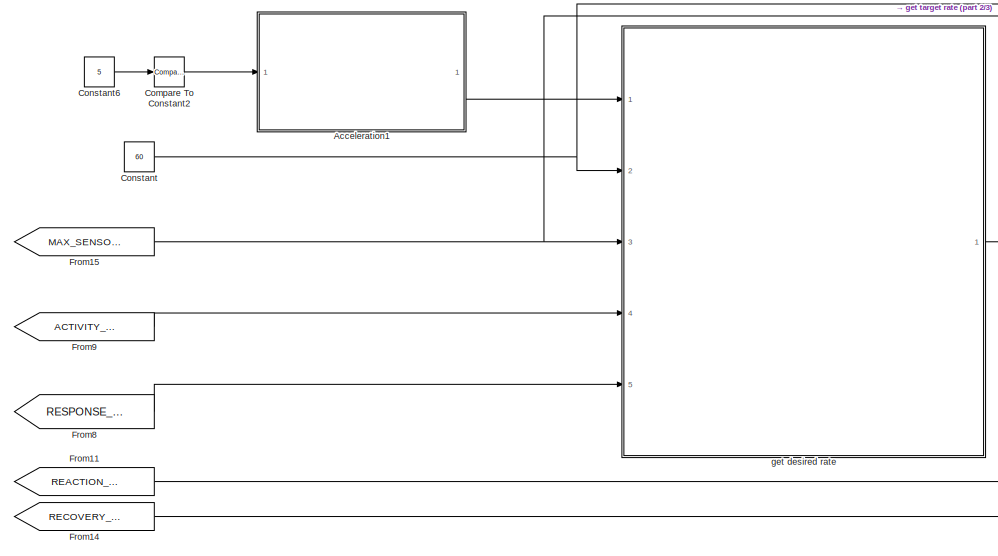
[diagram: root canvas - part 1/3, central region]
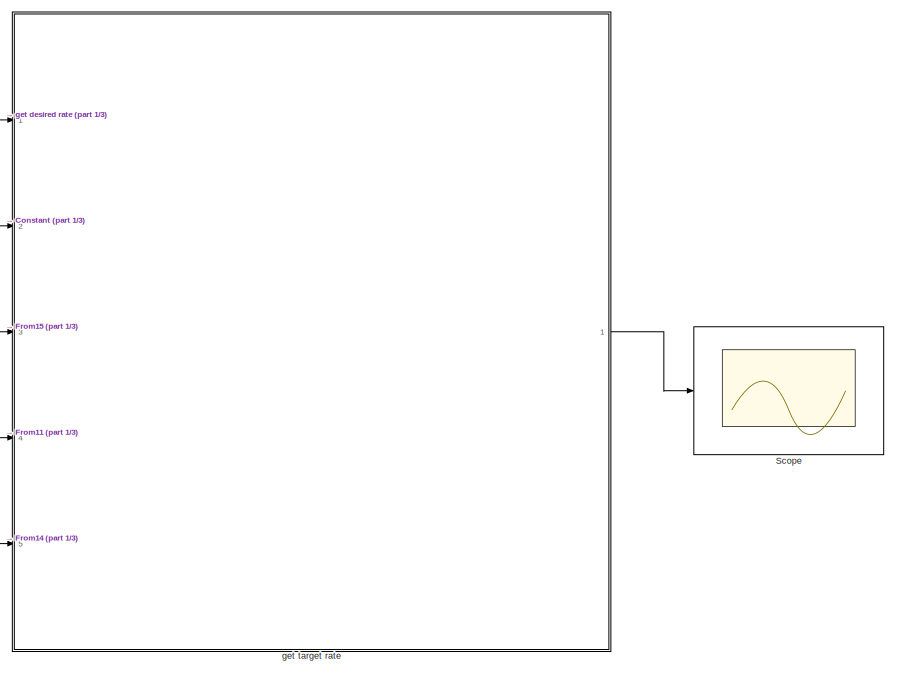
[diagram: root canvas - part 2/3, right side, full height]
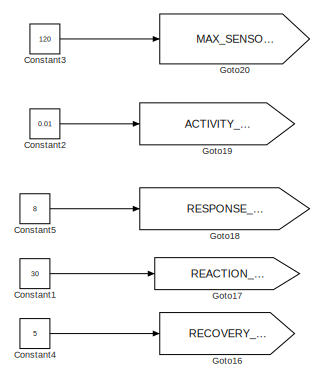
[diagram: root canvas - part 3/3, bottom left region]
MODEL slx_f4938a206f58
KIND model
CONFIG AbsTol = auto
CONFIG EnableMultiTasking = on
CONFIG FixedStep = 1e-3
CONFIG MaxStep = auto
CONFIG MinStep = auto
CONFIG RelTol = 1e-3
CONFIG SampleTimeConstraint = Unconstrained
CONFIG SolverName = FixedStepAuto
CONFIG StartTime = 0.0
CONFIG StopTime = 10.0
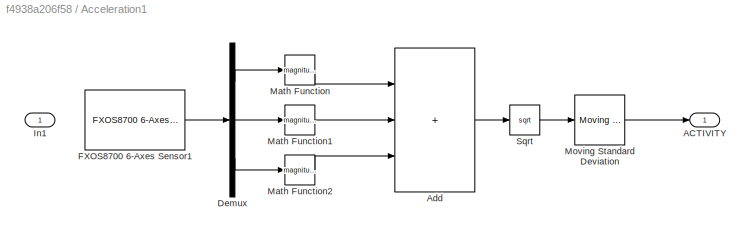
BLOCK [SubSystem] Acceleration1
  NameLocation = top
  Ports = [1, 1]
  RequestExecContextInheritance = off
BLOCK [Outport] Acceleration1/ACTIVITY
  SourceOfInitialOutputValue = Input signal
BLOCK [Sum] Acceleration1/Add
  IconShape = rectangular
  Inputs = +++
  Ports = [3, 1]
BLOCK [Demux] Acceleration1/Demux
  Outputs = 3
  Ports = [1, 3]
BLOCK [Reference] Acceleration1/FXOS8700 6-Axes Sensor1  REF=frdmk64flib/FXOS8700 6-Axes Sensor
  Ports = [0, 1]
  SourceBlock = frdmk64flib/FXOS8700 6-Axes Sensor
  SourceProductBaseCode = EC_FRDM_K64F
  SourceType = freedomk64f.fxos8700
BLOCK [Inport] Acceleration1/In1
BLOCK [Math] Acceleration1/Math Function
  Operator = magnitude^2
  OutDataTypeStr = double
  Ports = [1, 1]
  SignedPower = on
BLOCK [Math] Acceleration1/Math Function1
  Operator = magnitude^2
  OutDataTypeStr = double
  Ports = [1, 1]
  SignedPower = on
BLOCK [Math] Acceleration1/Math Function2
  Operator = magnitude^2
  OutDataTypeStr = double
  Ports = [1, 1]
  SignedPower = on
BLOCK [Reference] Acceleration1/Moving Standard Deviation  REF=dspstat3/Moving
Standard
Deviation
  Ports = [1, 1]
  SourceBlock = dspstat3/Moving\nStandard\nDeviation
  SourceProductBaseCode = DS
  SourceType = dsp.simulink.MovingStandardDeviation
BLOCK [Sqrt] Acceleration1/Sqrt
BLOCK [Reference] Compare To Constant2  REF=simulink/Logic and Bit
Operations/Compare
To Constant
  Ports = [1, 1]
  SourceBlock = simulink/Logic and Bit\nOperations/Compare\nTo Constant
  SourceProductBaseCode = SL
  SourceType = Compare To Constant
BLOCK [Constant] Constant
  Value = 60
BLOCK [Constant] Constant1
  Value = 30
BLOCK [Constant] Constant2
  Value = 0.01
BLOCK [Constant] Constant3
  Value = 120
BLOCK [Constant] Constant4
  Value = 5
BLOCK [Constant] Constant5
  Value = 8
BLOCK [Constant] Constant6
  Value = 5
BLOCK [From] From11
  GotoTag = REACTION_TIME
  TagVisibility = global
BLOCK [From] From14
  GotoTag = RECOVERY_TIME
  TagVisibility = global
BLOCK [From] From15
  GotoTag = MAX_SENSOR_RATE
  TagVisibility = global
BLOCK [From] From8
  GotoTag = RESPONSE_FACTOR
  TagVisibility = global
BLOCK [From] From9
  GotoTag = ACTIVITY_THRESHOLD
  TagVisibility = global
BLOCK [Goto] Goto16
  GotoTag = RECOVERY_TIME
  IconDisplay = Signal name
  TagVisibility = global
BLOCK [Goto] Goto17
  GotoTag = REACTION_TIME
  IconDisplay = Signal name
  TagVisibility = global
BLOCK [Goto] Goto18
  GotoTag = RESPONSE_FACTOR
  IconDisplay = Signal name
  TagVisibility = global
BLOCK [Goto] Goto19
  GotoTag = ACTIVITY_THRESHOLD
  IconDisplay = Signal name
  TagVisibility = global
BLOCK [Goto] Goto20
  GotoTag = MAX_SENSOR_RATE
  IconDisplay = Signal name
  TagVisibility = global
BLOCK [Scope] Scope
  Floating = off
  NumInputPorts = 1
  Ports = [1]
  ScopeSpecificationString = Simulink.scopes.TimeScopeBlockCfg('CurrentConfiguration', extmgr.ConfigurationSet(extmgr.Configuration('Core','General UI',true),extmgr.Configuration('Core','Source UI',true),extmgr.Configuration('Sources','WiredSimulink',true),extmgr.Configuration('Visuals','Time Domain',true,'SerializedDisplays',{struct('MinYLimReal','48.5','MaxYLimReal','63.5','YLabelReal','','MinYLimMag','48.5','MaxYLimMag','6...<+1388ch>
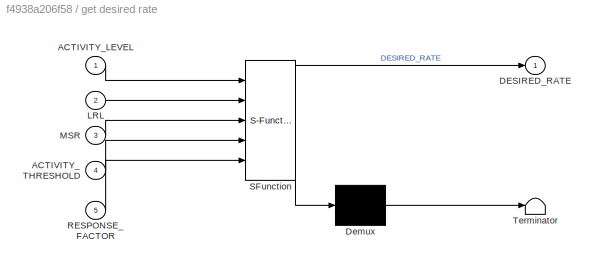
BLOCK [SubSystem] get desired rate
  ErrorFcn = Stateflow.Translate.translate
  PermitHierarchicalResolution = ExplicitOnly
  Ports = [5, 1]
  RequestExecContextInheritance = off
  SFBlockType = Chart
  TreatAsAtomicUnit = on
BLOCK [Demux] get desired rate/ Demux 
  Outputs = 1
  Ports = [1, 1]
BLOCK [S-Function] get desired rate/ SFunction 
  EnableBusSupport = on
  FunctionName = sf_sfun
  PortCounts = [5 2]
  Ports = [5, 2]
  SFcnIsStateOwnerBlock = off
  SFunctionDeploymentMode = off
  Tag = Stateflow S-Function 4
BLOCK [Terminator] get desired rate/ Terminator 
BLOCK [Inport] get desired rate/ACTIVITY_LEVEL
BLOCK [Inport] get desired rate/ACTIVITY_THRESHOLD
  Port = 4
BLOCK [Outport] get desired rate/DESIRED_RATE
BLOCK [Inport] get desired rate/LRL
  Port = 2
BLOCK [Inport] get desired rate/MSR
  Port = 3
BLOCK [Inport] get desired rate/RESPONSE_FACTOR
  Port = 5
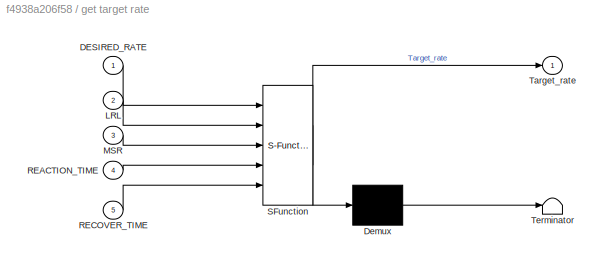
BLOCK [SubSystem] get target rate
  ErrorFcn = Stateflow.Translate.translate
  PermitHierarchicalResolution = ExplicitOnly
  PortSchema = {"entries":[{"content":{"sides":[{"content":{"connectorIds":["In3","In2","In1","In4","In5"]},"type":"ConnectorPlacement.EquallySpacedRectSide","uuid":"b1115713-3752-47d5-be72-104b51cdb1c5"},{"content":{"connectorIds":["Out1"],"side":"RIGHT"},"type":"ConnectorPlacement.EquallySpacedRectSide","uuid":"0930a30a-8aa5-4912-ba1f-cc7f148656b0"},{"content":{"connectorIds":[],"side":"TOP"},"type":"Connector...<+264ch>
  Ports = [5, 1]
  RequestExecContextInheritance = off
  SFBlockType = Chart
  TreatAsAtomicUnit = on
BLOCK [Demux] get target rate/ Demux 
  Outputs = 1
  Ports = [1, 1]
BLOCK [S-Function] get target rate/ SFunction 
  EnableBusSupport = on
  FunctionName = sf_sfun
  PortCounts = [5 2]
  Ports = [5, 2]
  SFcnIsStateOwnerBlock = off
  SFunctionDeploymentMode = off
  Tag = Stateflow S-Function 5
BLOCK [Terminator] get target rate/ Terminator 
BLOCK [Inport] get target rate/DESIRED_RATE
BLOCK [Inport] get target rate/LRL
  Port = 2
BLOCK [Inport] get target rate/MSR
  Port = 3
BLOCK [Inport] get target rate/REACTION_TIME
  Port = 4
BLOCK [Inport] get target rate/RECOVER_TIME
  Port = 5
BLOCK [Outport] get target rate/Target_rate
LINE Acceleration1/Add:1 -> Acceleration1/Sqrt:1
LINE Acceleration1/Demux:1 -> Acceleration1/Math Function:1
LINE Acceleration1/Demux:2 -> Acceleration1/Math Function1:1
LINE Acceleration1/Demux:3 -> Acceleration1/Math Function2:1
LINE Acceleration1/FXOS8700 6-Axes Sensor1:1 -> Acceleration1/Demux:1
LINE Acceleration1/Math Function1:1 -> Acceleration1/Add:2
LINE Acceleration1/Math Function2:1 -> Acceleration1/Add:3
LINE Acceleration1/Math Function:1 -> Acceleration1/Add:1
LINE Acceleration1/Moving Standard Deviation:1 -> Acceleration1/ACTIVITY:1
LINE Acceleration1/Sqrt:1 -> Acceleration1/Moving Standard Deviation:1
LINE Acceleration1:1 -> get desired rate:1
LINE Compare To Constant2:1 -> Acceleration1:1
LINE Constant1:1 -> Goto17:1
LINE Constant2:1 -> Goto19:1
LINE Constant3:1 -> Goto20:1
LINE Constant4:1 -> Goto16:1
LINE Constant5:1 -> Goto18:1
LINE Constant6:1 -> Compare To Constant2:1
NET Constant:1 -> get desired rate:2, get target rate:2
LINE From11:1 -> get target rate:4
LINE From14:1 -> get target rate:5
NET From15:1 -> get desired rate:3, get target rate:3
LINE From8:1 -> get desired rate:5
LINE From9:1 -> get desired rate:4
LINE get desired rate:1 -> get target rate:1
LINE get target rate:1 -> Scope:1
note: NET lines group one-source signal fan-out (src -> all destinations, sorted); 1:1 wires keep LINE
CHART get desired rate states=5 transitions=8
  STATE_LABEL 'check\n%check if the actvity level below the threshold'
  STATE_LABEL 'Desires_output_1\nentry:\nDESIRED_RATE=LRL;'
  STATE_LABEL 'Desires_output_3\nentry:\nDESIRED_RATE = Local_rate;'
  STATE_LABEL 'Desires_output_2\nentry:\nDESIRED_RATE = MSR;'
  STATE_LABEL 'Increase_Linear\nentry:\nLocal_rate = LRL + RESPONSE_FACTOR*(ACTIVITY_LEVEL-ACTIVITY_THRESHOLD);'
CHART get target rate states=4 transitions=6
  STATE_LABEL 'increase_state\nentry:\n%use linear:\nif(Target_rate<MSR && Target_rate<DESIRED_RATE)\n    Target_rate=Target_rate+step_up;\nelseif(Target_rate == DESIRED_RATE)\n    Target_rate = DESIRED_RATE;\nelseif(Target_rate>MSR)\n    Target_rate = MSR\nend'
  STATE_LABEL 'step_state\nentry:\nstep_up = (MSR-LRL)/REACTION_TIME;\nstep_down = (MSR-LRL)/RECOVER_TIME;\n'
  STATE_LABEL 'decrease_state\nentry:\nif(Target_rate<MSR)\n    Target_rate = Target_rate - step_down;\nelseif(Target_rate <= LRL)\n    Target_rate = LRL;\nend'
  STATE_LABEL 'start_state\n%set target rate to at least LRL\nTarget_rate = LRL;'
CHART  states=0 transitions=0
CHART  states=0 transitions=0
